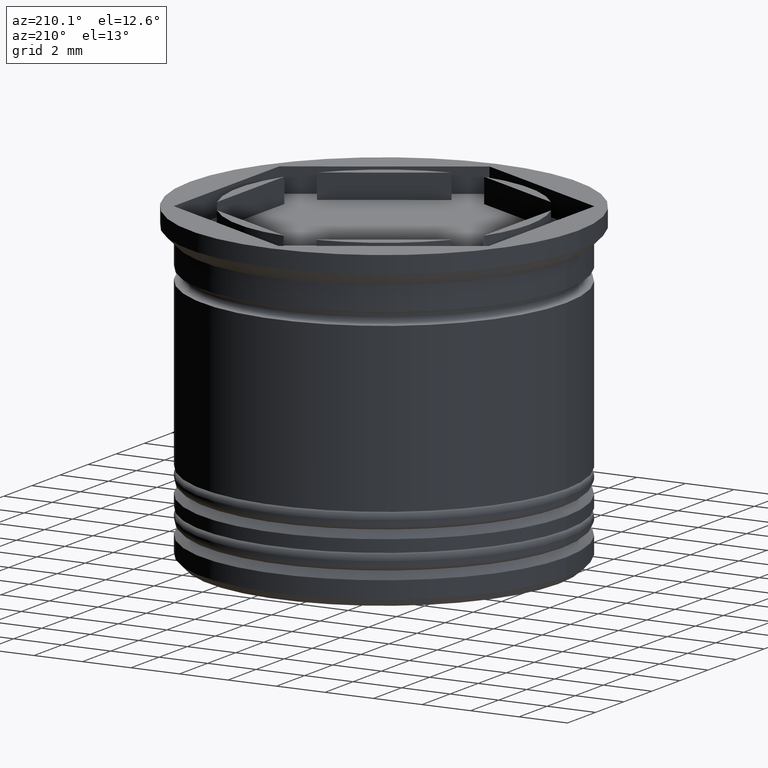
[diagram: clean part render]
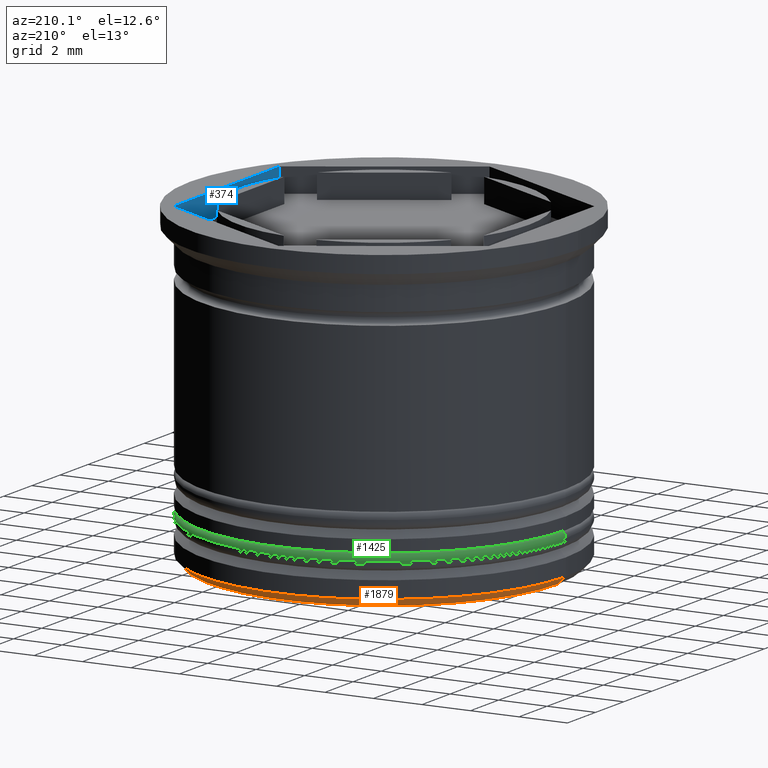
[diagram: same view with three faces highlighted in distinct colors, each labeled with its STEP entity id]
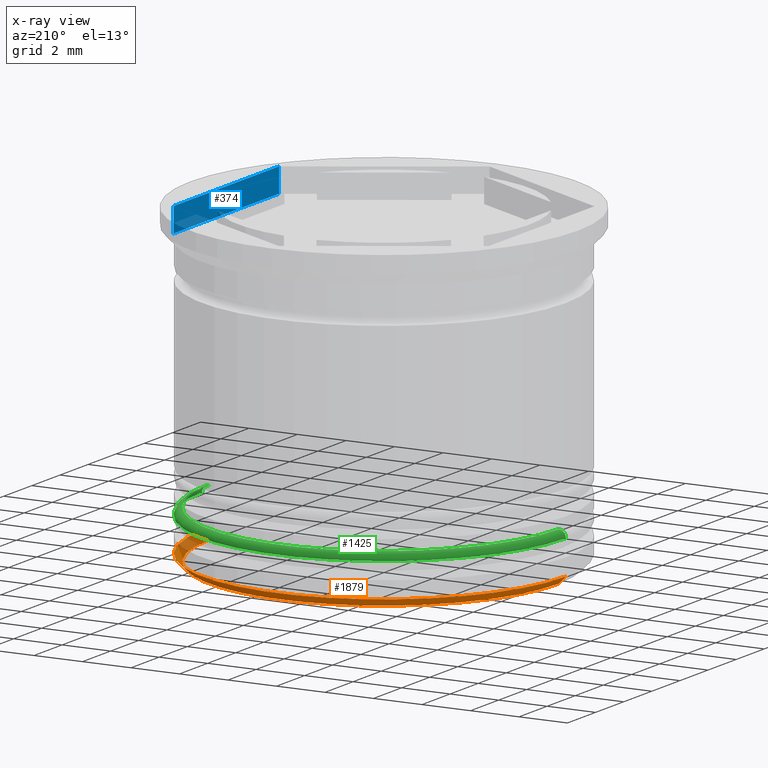
[diagram: x-ray of the same camera — body ghosted, the three highlighted faces saturated]
A machine part, auxiliary view with three faces highlighted in distinct colors.
The next image is the same camera in x-ray (body ghosted, the three faces saturated) — at least one of them is partly hidden behind the body in this view.
Their STEP definitions:

[orange] entity #1879 — the highlighted conical surface has half-angle 45 deg.
#51 = CIRCLE ( 'NONE', #1051, 7.199999999999998401 ) ;
#60 = DIRECTION ( 'NONE',  ( 0.7071067811865526798, 0.000000000000000000, 0.7071067811865424657 ) ) ;
#244 = DIRECTION ( 'NONE',  ( 0.000000000000000000, 0.000000000000000000, -1.000000000000000000 ) ) ;
#272 = DIRECTION ( 'NONE',  ( -0.000000000000000000, -0.000000000000000000, 1.000000000000000000 ) ) ;
#283 = AXIS2_PLACEMENT_3D ( 'NONE', #420, #272, #880 ) ;
#309 = CARTESIAN_POINT ( 'NONE',  ( 7.199999999999998401, 0.000000000000000000, -13.00000000000000178 ) ) ;
#415 = CIRCLE ( 'NONE', #283, 7.500000000000000888 ) ;
#417 = ORIENTED_EDGE ( 'NONE', *, *, #1991, .F. ) ;
#420 = CARTESIAN_POINT ( 'NONE',  ( 0.000000000000000000, 0.000000000000000000, -12.70000000000000284 ) ) ;
#556 = CARTESIAN_POINT ( 'NONE',  ( 7.500000000000000888, 0.000000000000000000, -12.70000000000000284 ) ) ;
#559 = CARTESIAN_POINT ( 'NONE',  ( 7.500000000000000888, 0.000000000000000000, -12.70000000000000284 ) ) ;
#611 = VECTOR ( 'NONE', #1345, 1000.000000000000000 ) ;
#634 = EDGE_CURVE ( 'NONE', #1477, #1684, #685, .T. ) ;
#678 = VERTEX_POINT ( 'NONE', #1604 ) ;
#685 = LINE ( 'NONE', #556, #1912 ) ;
#702 = VERTEX_POINT ( 'NONE', #1439 ) ;
#722 = DIRECTION ( 'NONE',  ( -1.000000000000000000, 0.000000000000000000, 0.000000000000000000 ) ) ;
#764 = DIRECTION ( 'NONE',  ( -0.000000000000000000, -0.000000000000000000, 1.000000000000000000 ) ) ;
#778 = FACE_OUTER_BOUND ( 'NONE', #1934, .T. ) ;
#880 = DIRECTION ( 'NONE',  ( -1.000000000000000000, 0.000000000000000000, 0.000000000000000000 ) ) ;
#960 = AXIS2_PLACEMENT_3D ( 'NONE', #1050, #764, #1369 ) ;
#1050 = CARTESIAN_POINT ( 'NONE',  ( 0.000000000000000000, 0.000000000000000000, -12.70000000000000284 ) ) ;
#1051 = AXIS2_PLACEMENT_3D ( 'NONE', #1950, #244, #722 ) ;
#1188 = ORIENTED_EDGE ( 'NONE', *, *, #634, .F. ) ;
#1257 = ORIENTED_EDGE ( 'NONE', *, *, #1922, .F. ) ;
#1324 = CARTESIAN_POINT ( 'NONE',  ( -7.500000000000000888, 9.184850993605149917E-16, -12.70000000000000284 ) ) ;
#1345 = DIRECTION ( 'NONE',  ( -0.7071067811865526798, 8.659560562354995721E-17, 0.7071067811865424657 ) ) ;
#1369 = DIRECTION ( 'NONE',  ( 1.000000000000000000, 0.000000000000000000, 0.000000000000000000 ) ) ;
#1439 = CARTESIAN_POINT ( 'NONE',  ( -7.500000000000000888, 9.184850993605149917E-16, -12.70000000000000284 ) ) ;
#1477 = VERTEX_POINT ( 'NONE', #309 ) ;
#1485 = LINE ( 'NONE', #1324, #611 ) ;
#1604 = CARTESIAN_POINT ( 'NONE',  ( -7.199999999999998401, 9.001153973733045617E-16, -13.00000000000000178 ) ) ;
#1684 = VERTEX_POINT ( 'NONE', #559 ) ;
#1879 = ADVANCED_FACE ( 'NONE', ( #778 ), #1910, .T. ) ;
#1910 = CONICAL_SURFACE ( 'NONE', #960, 7.500000000000000888, 0.7853981633974554954 ) ;
#1912 = VECTOR ( 'NONE', #60, 1000.000000000000000 ) ;
#1922 = EDGE_CURVE ( 'NONE', #678, #1477, #51, .T. ) ;
#1934 = EDGE_LOOP ( 'NONE', ( #1257, #1937, #417, #1188 ) ) ;
#1937 = ORIENTED_EDGE ( 'NONE', *, *, #1953, .T. ) ;
#1950 = CARTESIAN_POINT ( 'NONE',  ( 0.000000000000000000, 0.000000000000000000, -13.00000000000000178 ) ) ;
#1953 = EDGE_CURVE ( 'NONE', #678, #702, #1485, .T. ) ;
#1991 = EDGE_CURVE ( 'NONE', #1684, #702, #415, .T. ) ;

[blue] entity #374 — the highlighted planar face has unit normal (1, -0, 0).
#47 = CARTESIAN_POINT ( 'NONE',  ( 6.500000000000001776, -3.752776749732567918, 0.000000000000000000 ) ) ;
#59 = EDGE_LOOP ( 'NONE', ( #910, #524, #1525, #1640 ) ) ;
#78 = VECTOR ( 'NONE', #1005, 1000.000000000000000 ) ;
#374 = ADVANCED_FACE ( 'NONE', ( #1090 ), #967, .F. ) ;
#379 = CARTESIAN_POINT ( 'NONE',  ( 6.500000000000001776, -3.752776749732567918, 0.000000000000000000 ) ) ;
#503 = CARTESIAN_POINT ( 'NONE',  ( 6.500000000000001776, -3.752776749732567918, -1.000000000000000000 ) ) ;
#524 = ORIENTED_EDGE ( 'NONE', *, *, #641, .F. ) ;
#525 = CARTESIAN_POINT ( 'NONE',  ( 6.500000000000002665, 3.752776749732568806, -1.000000000000000000 ) ) ;
#641 = EDGE_CURVE ( 'NONE', #1103, #1748, #1141, .T. ) ;
#648 = VERTEX_POINT ( 'NONE', #47 ) ;
#659 = EDGE_CURVE ( 'NONE', #648, #1748, #821, .T. ) ;
#700 = CARTESIAN_POINT ( 'NONE',  ( 6.500000000000001776, -3.752776749732567918, -1.000000000000000000 ) ) ;
#821 = LINE ( 'NONE', #379, #1589 ) ;
#827 = DIRECTION ( 'NONE',  ( -0.000000000000000000, -0.000000000000000000, 1.000000000000000000 ) ) ;
#910 = ORIENTED_EDGE ( 'NONE', *, *, #659, .T. ) ;
#925 = VECTOR ( 'NONE', #1149, 1000.000000000000000 ) ;
#967 = PLANE ( 'NONE',  #1077 ) ;
#991 = VERTEX_POINT ( 'NONE', #503 ) ;
#1005 = DIRECTION ( 'NONE',  ( 1.155626614413199331E-16, 1.000000000000000000, 0.000000000000000000 ) ) ;
#1074 = VECTOR ( 'NONE', #827, 1000.000000000000000 ) ;
#1077 = AXIS2_PLACEMENT_3D ( 'NONE', #1570, #1694, #1384 ) ;
#1090 = FACE_OUTER_BOUND ( 'NONE', #59, .T. ) ;
#1103 = VERTEX_POINT ( 'NONE', #525 ) ;
#1119 = LINE ( 'NONE', #1725, #1074 ) ;
#1124 = EDGE_CURVE ( 'NONE', #991, #648, #1119, .T. ) ;
#1141 = LINE ( 'NONE', #1727, #925 ) ;
#1149 = DIRECTION ( 'NONE',  ( -0.000000000000000000, -0.000000000000000000, 1.000000000000000000 ) ) ;
#1216 = EDGE_CURVE ( 'NONE', #991, #1103, #1292, .T. ) ;
#1277 = DIRECTION ( 'NONE',  ( 1.155626614413199331E-16, 1.000000000000000000, 0.000000000000000000 ) ) ;
#1292 = LINE ( 'NONE', #700, #78 ) ;
#1384 = DIRECTION ( 'NONE',  ( 1.155626614413199331E-16, 1.000000000000000000, 0.000000000000000000 ) ) ;
#1525 = ORIENTED_EDGE ( 'NONE', *, *, #1216, .F. ) ;
#1570 = CARTESIAN_POINT ( 'NONE',  ( 6.500000000000001776, -3.752776749732567918, -1.000000000000000000 ) ) ;
#1589 = VECTOR ( 'NONE', #1277, 1000.000000000000000 ) ;
#1640 = ORIENTED_EDGE ( 'NONE', *, *, #1124, .T. ) ;
#1694 = DIRECTION ( 'NONE',  ( 1.000000000000000000, -1.155626614413199331E-16, 0.000000000000000000 ) ) ;
#1725 = CARTESIAN_POINT ( 'NONE',  ( 6.500000000000001776, -3.752776749732567918, -1.000000000000000000 ) ) ;
#1727 = CARTESIAN_POINT ( 'NONE',  ( 6.500000000000002665, 3.752776749732568806, -1.000000000000000000 ) ) ;
#1748 = VERTEX_POINT ( 'NONE', #1929 ) ;
#1929 = CARTESIAN_POINT ( 'NONE',  ( 6.500000000000002665, 3.752776749732568806, 0.000000000000000000 ) ) ;

[green] entity #1425 — the highlighted toroidal blend (fillet) surface has major radius 7.2 mm and minor (blend) radius 0.3 mm.
#4 = DIRECTION ( 'NONE',  ( -1.000000000000000000, 0.000000000000000000, 0.000000000000000000 ) ) ;
#12 = AXIS2_PLACEMENT_3D ( 'NONE', #1864, #299, #4 ) ;
#22 = DIRECTION ( 'NONE',  ( -1.000000000000000000, -1.224646799147353207E-16, 0.000000000000000000 ) ) ;
#53 = DIRECTION ( 'NONE',  ( -1.000000000000000000, 0.000000000000000000, 0.000000000000000000 ) ) ;
#107 = EDGE_CURVE ( 'NONE', #505, #499, #120, .T. ) ;
#120 = CIRCLE ( 'NONE', #252, 7.500000000000001776 ) ;
#158 = DIRECTION ( 'NONE',  ( 0.000000000000000000, 0.000000000000000000, -1.000000000000000000 ) ) ;
#185 = CARTESIAN_POINT ( 'NONE',  ( -7.500000000000001776, 9.184850993605149917E-16, -11.29999999999999716 ) ) ;
#233 = DIRECTION ( 'NONE',  ( -1.000000000000000000, 0.000000000000000000, 0.000000000000000000 ) ) ;
#240 = CARTESIAN_POINT ( 'NONE',  ( 0.000000000000000000, 0.000000000000000000, -11.29999999999999716 ) ) ;
#252 = AXIS2_PLACEMENT_3D ( 'NONE', #240, #1760, #233 ) ;
#299 = DIRECTION ( 'NONE',  ( 0.000000000000000000, 0.000000000000000000, -1.000000000000000000 ) ) ;
#307 = CARTESIAN_POINT ( 'NONE',  ( -7.200000000000001954, 0.000000000000000000, -11.29999999999999716 ) ) ;
#323 = FACE_OUTER_BOUND ( 'NONE', #1113, .T. ) ;
#367 = EDGE_CURVE ( 'NONE', #1618, #505, #1463, .T. ) ;
#432 = ORIENTED_EDGE ( 'NONE', *, *, #107, .F. ) ;
#478 = EDGE_CURVE ( 'NONE', #1069, #1618, #1946, .T. ) ;
#491 = DIRECTION ( 'NONE',  ( -0.000000000000000000, -1.000000000000000000, -0.000000000000000000 ) ) ;
#499 = VERTEX_POINT ( 'NONE', #1938 ) ;
#501 = DIRECTION ( 'NONE',  ( -1.224646799147353207E-16, 1.000000000000000000, 0.000000000000000000 ) ) ;
#505 = VERTEX_POINT ( 'NONE', #185 ) ;
#553 = CARTESIAN_POINT ( 'NONE',  ( 7.200000000000001954, 9.001153973733047589E-16, -11.00000000000000000 ) ) ;
#563 = ORIENTED_EDGE ( 'NONE', *, *, #367, .F. ) ;
#579 = ORIENTED_EDGE ( 'NONE', *, *, #1380, .T. ) ;
#771 = CARTESIAN_POINT ( 'NONE',  ( 7.200000000000001954, 8.817456953860946247E-16, -11.29999999999999716 ) ) ;
#978 = ORIENTED_EDGE ( 'NONE', *, *, #478, .F. ) ;
#1069 = VERTEX_POINT ( 'NONE', #553 ) ;
#1113 = EDGE_LOOP ( 'NONE', ( #978, #579, #432, #563 ) ) ;
#1117 = CARTESIAN_POINT ( 'NONE',  ( -7.200000000000001954, 0.000000000000000000, -11.00000000000000000 ) ) ;
#1380 = EDGE_CURVE ( 'NONE', #1069, #499, #1558, .T. ) ;
#1401 = AXIS2_PLACEMENT_3D ( 'NONE', #307, #491, #158 ) ;
#1425 = ADVANCED_FACE ( 'NONE', ( #323 ), #1740, .T. ) ;
#1428 = DIRECTION ( 'NONE',  ( -0.000000000000000000, -0.000000000000000000, 1.000000000000000000 ) ) ;
#1463 = CIRCLE ( 'NONE', #1401, 0.2999999999999999334 ) ;
#1558 = CIRCLE ( 'NONE', #1877, 0.2999999999999999334 ) ;
#1618 = VERTEX_POINT ( 'NONE', #1117 ) ;
#1739 = CARTESIAN_POINT ( 'NONE',  ( 0.000000000000000000, 0.000000000000000000, -11.00000000000000000 ) ) ;
#1740 = TOROIDAL_SURFACE ( 'NONE', #12, 7.200000000000001954, 0.2999999999999999889 ) ;
#1743 = AXIS2_PLACEMENT_3D ( 'NONE', #1739, #1428, #53 ) ;
#1760 = DIRECTION ( 'NONE',  ( 0.000000000000000000, 0.000000000000000000, -1.000000000000000000 ) ) ;
#1864 = CARTESIAN_POINT ( 'NONE',  ( 0.000000000000000000, 0.000000000000000000, -11.29999999999999716 ) ) ;
#1877 = AXIS2_PLACEMENT_3D ( 'NONE', #771, #501, #22 ) ;
#1938 = CARTESIAN_POINT ( 'NONE',  ( 7.500000000000001776, 0.000000000000000000, -11.29999999999999716 ) ) ;
#1946 = CIRCLE ( 'NONE', #1743, 7.200000000000001954 ) ;